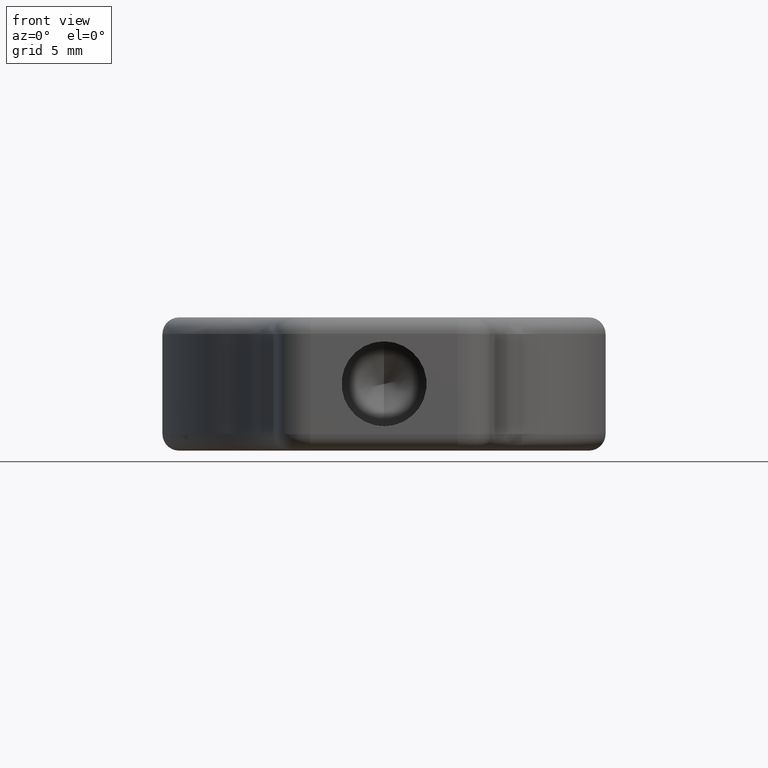
[diagram: clean part render]
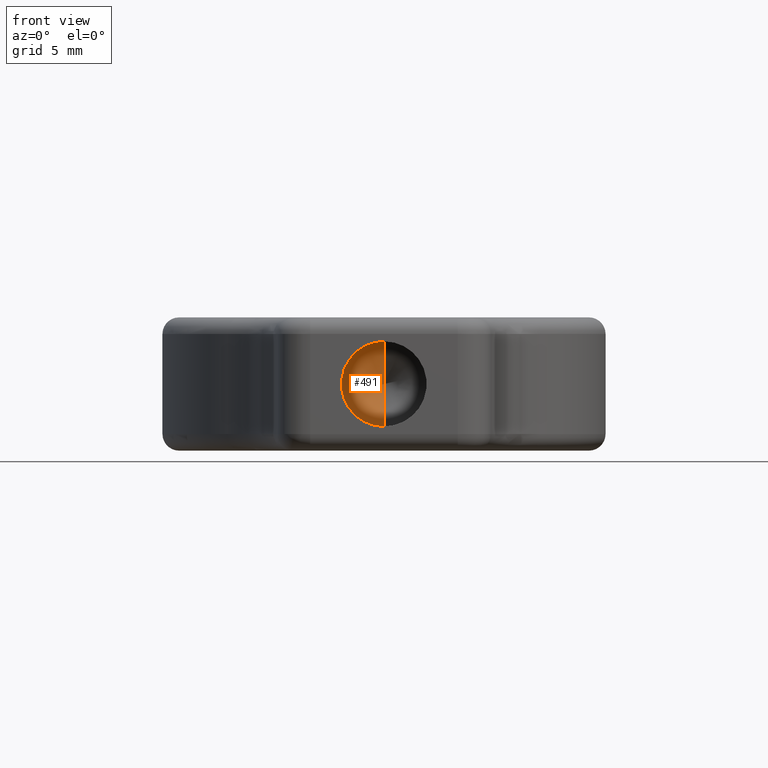
[diagram: same view with one face highlighted and labeled with its STEP entity id]
A machine part, front view. The second image highlights one B-rep face of the part: STEP entity #491.
In plain terms, the highlighted conical surface has half-angle 59 deg.
Its self-contained STEP definition (entity closure, byte-faithful):
#1 = CIRCLE ( 'NONE', #1187, 2.552699999999998000 ) ;
#14 = CARTESIAN_POINT ( 'NONE',  ( 2.223772548633337300, -9.232811299854562400, 34.00000000000000000 ) ) ;
#27 = CARTESIAN_POINT ( 'NONE',  ( 2.223772548633339100, -10.76662820204621500, 34.00000000000000000 ) ) ;
#28 = LINE ( 'NONE', #1066, #919 ) ;
#53 = VERTEX_POINT ( 'NONE', #14 ) ;
#285 = CARTESIAN_POINT ( 'NONE',  ( 2.223772548633339100, -10.76662820204621500, 34.00000000000000000 ) ) ;
#359 = CARTESIAN_POINT ( 'NONE',  ( 2.223772548633339100, -10.76662820204621500, 31.44730000000000600 ) ) ;
#416 = LINE ( 'NONE', #1232, #631 ) ;
#425 = AXIS2_PLACEMENT_3D ( 'NONE', #285, #448, #472 ) ;
#448 = DIRECTION ( 'NONE',  ( -0.0000000000000000000, -1.000000000000000000, -0.0000000000000000000 ) ) ;
#454 = CONICAL_SURFACE ( 'NONE', #425, 2.552699999999998000, 1.029744258676654100 ) ;
#472 = DIRECTION ( 'NONE',  ( 0.0000000000000000000, 0.0000000000000000000, -1.000000000000000000 ) ) ;
#491 = ADVANCED_FACE ( 'NONE', ( #842 ), #454, .F. ) ;
#631 = VECTOR ( 'NONE', #1205, 1000.000000000000000 ) ;
#842 = FACE_OUTER_BOUND ( 'NONE', #2017, .T. ) ;
#919 = VECTOR ( 'NONE', #1766, 1000.000000000000000 ) ;
#1008 = ORIENTED_EDGE ( 'NONE', *, *, #1621, .T. ) ;
#1066 = CARTESIAN_POINT ( 'NONE',  ( 2.223772548633339500, -10.76662820204621500, 36.55270000000000200 ) ) ;
#1079 = DIRECTION ( 'NONE',  ( -0.0000000000000000000, -1.000000000000000000, -0.0000000000000000000 ) ) ;
#1187 = AXIS2_PLACEMENT_3D ( 'NONE', #27, #1079, #1454 ) ;
#1205 = DIRECTION ( 'NONE',  ( 0.0000000000000000000, -0.5150380749100544900, -0.8571673007021121100 ) ) ;
#1232 = CARTESIAN_POINT ( 'NONE',  ( 2.223772548633339100, -10.76662820204621500, 31.44730000000000600 ) ) ;
#1454 = DIRECTION ( 'NONE',  ( 0.0000000000000000000, 0.0000000000000000000, -1.000000000000000000 ) ) ;
#1603 = ORIENTED_EDGE ( 'NONE', *, *, #2109, .F. ) ;
#1621 = EDGE_CURVE ( 'NONE', #53, #2206, #28, .T. ) ;
#1682 = VERTEX_POINT ( 'NONE', #359 ) ;
#1754 = ORIENTED_EDGE ( 'NONE', *, *, #2190, .T. ) ;
#1766 = DIRECTION ( 'NONE',  ( 1.049727191138618400E-016, -0.5150380749100544900, 0.8571673007021121100 ) ) ;
#1804 = CARTESIAN_POINT ( 'NONE',  ( 2.223772548633339500, -10.76662820204621500, 36.55270000000000200 ) ) ;
#2017 = EDGE_LOOP ( 'NONE', ( #1603, #1008, #1754 ) ) ;
#2109 = EDGE_CURVE ( 'NONE', #53, #1682, #416, .T. ) ;
#2190 = EDGE_CURVE ( 'NONE', #2206, #1682, #1, .T. ) ;
#2206 = VERTEX_POINT ( 'NONE', #1804 ) ;